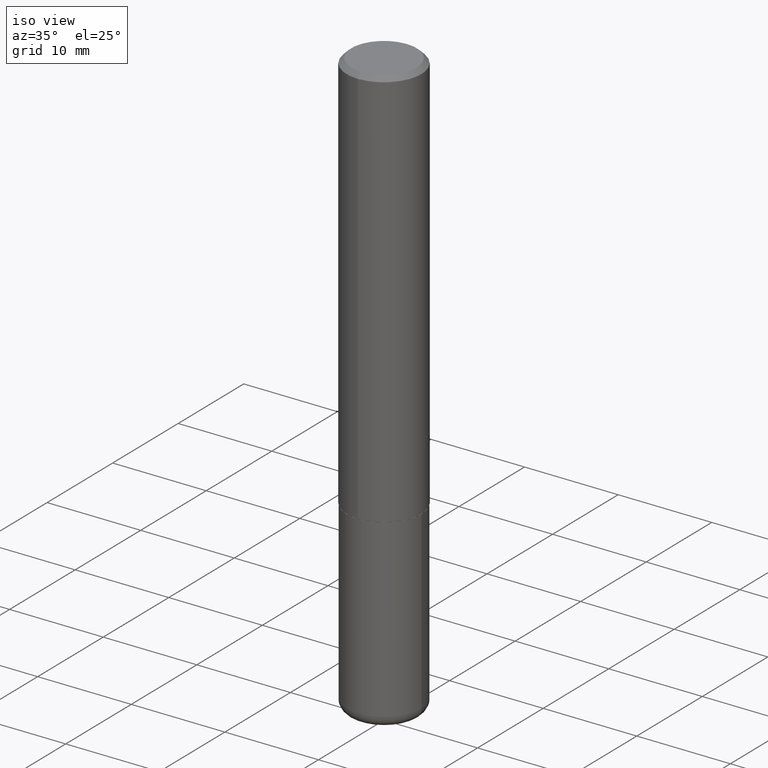
[diagram: clean part render]
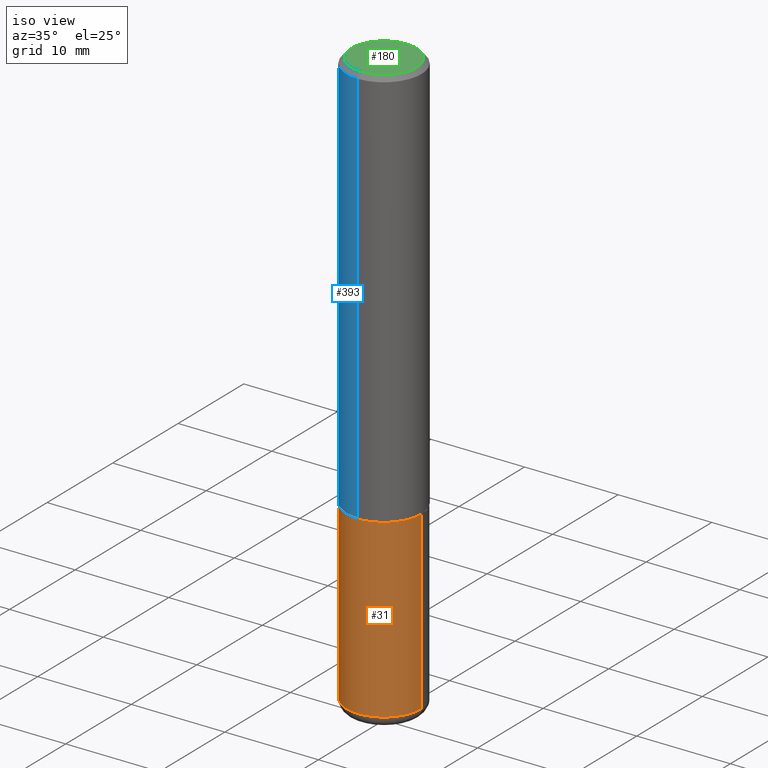
[diagram: same view with three faces highlighted in distinct colors, each labeled with its STEP entity id]
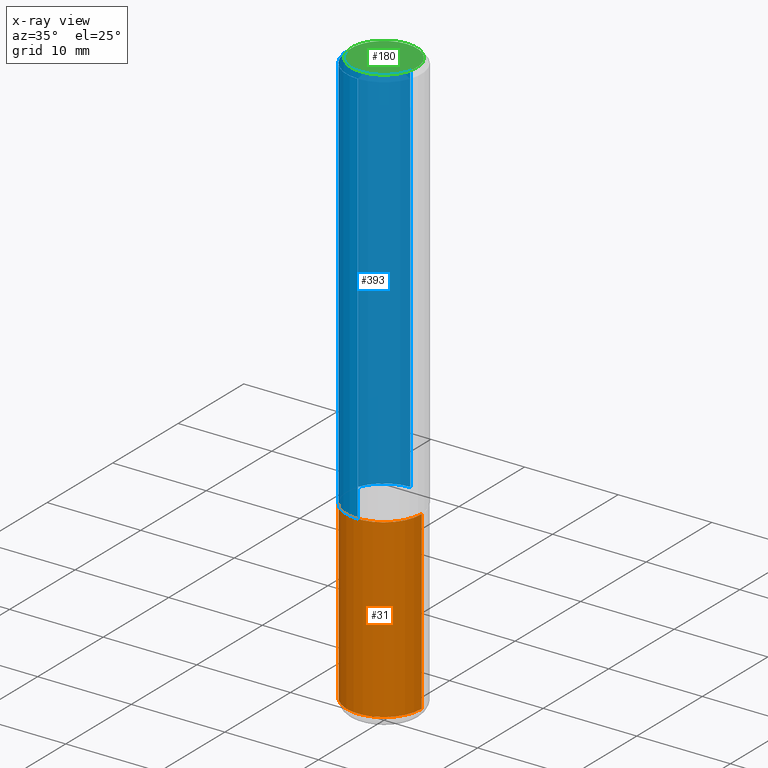
[diagram: x-ray of the same camera — body ghosted, the three highlighted faces saturated]
A machine part, iso view with three faces highlighted in distinct colors.
The next image is the same camera in x-ray (body ghosted, the three faces saturated) — at least one of them is partly hidden behind the body in this view.
Their STEP definitions:

[orange] entity #31 — the highlighted cylindrical surface (partial cylindrical patch) has radius 4.0005 mm, axis along (-0, 0, 1).
#1 = EDGE_LOOP ( 'NONE', ( #234, #64, #136, #199 ) ) ;
#4 = EDGE_CURVE ( 'NONE', #377, #75, #38, .T. ) ;
#31 = ADVANCED_FACE ( 'NONE', ( #309 ), #91, .T. ) ;
#38 = CIRCLE ( 'NONE', #107, 0.1575000000000000011 ) ;
#49 = CARTESIAN_POINT ( 'NONE',  ( 0.1575000000000000011, -7.010545380263150133E-15, -1.692900000000000293 ) ) ;
#63 = EDGE_CURVE ( 'NONE', #305, #75, #246, .T. ) ;
#64 = ORIENTED_EDGE ( 'NONE', *, *, #409, .T. ) ;
#74 = EDGE_CURVE ( 'NONE', #155, #377, #213, .T. ) ;
#75 = VERTEX_POINT ( 'NONE', #49 ) ;
#88 = CARTESIAN_POINT ( 'NONE',  ( -0.1574999999999999456, 1.119104808822157406E-15, -7.747322767151474182E-30 ) ) ;
#90 = DIRECTION ( 'NONE',  ( 1.000000000000000000, -6.982962677686267499E-15, 4.876176775795935793E-29 ) ) ;
#91 = CYLINDRICAL_SURFACE ( 'NONE', #405, 0.1574999999999999456 ) ;
#107 = AXIS2_PLACEMENT_3D ( 'NONE', #202, #139, #417 ) ;
#128 = CARTESIAN_POINT ( 'NONE',  ( 0.1574999999999998346, -9.594939867274844201E-15, -2.433100000000000041 ) ) ;
#133 = DIRECTION ( 'NONE',  ( 1.000000000000000000, -6.982962677686270655E-15, 0.000000000000000000 ) ) ;
#136 = ORIENTED_EDGE ( 'NONE', *, *, #63, .T. ) ;
#139 = DIRECTION ( 'NONE',  ( -2.445468806185136597E-29, 3.491481338843145583E-15, 1.000000000000000000 ) ) ;
#140 = VECTOR ( 'NONE', #370, 39.37007874015748143 ) ;
#146 = CARTESIAN_POINT ( 'NONE',  ( 0.1574999999999999456, -1.099816621735586691E-15, 7.679978421878596632E-30 ) ) ;
#151 = AXIS2_PLACEMENT_3D ( 'NONE', #198, #322, #133 ) ;
#155 = VERTEX_POINT ( 'NONE', #221 ) ;
#190 = DIRECTION ( 'NONE',  ( -2.445468806185136597E-29, 3.491481338843145583E-15, 1.000000000000000000 ) ) ;
#198 = CARTESIAN_POINT ( 'NONE',  ( 5.950070152329056268E-29, -8.495123245539257510E-15, -2.433100000000000041 ) ) ;
#199 = ORIENTED_EDGE ( 'NONE', *, *, #4, .F. ) ;
#202 = CARTESIAN_POINT ( 'NONE',  ( 4.139934141990818918E-29, -5.910728758527562653E-15, -1.692900000000000293 ) ) ;
#213 = LINE ( 'NONE', #88, #243 ) ;
#221 = CARTESIAN_POINT ( 'NONE',  ( -0.1574999999999998346, -7.376018436717101484E-15, -2.433100000000000041 ) ) ;
#234 = ORIENTED_EDGE ( 'NONE', *, *, #74, .F. ) ;
#243 = VECTOR ( 'NONE', #274, 39.37007874015748143 ) ;
#246 = LINE ( 'NONE', #146, #140 ) ;
#274 = DIRECTION ( 'NONE',  ( -2.445468806185136877E-29, 3.491481338843145188E-15, 1.000000000000000000 ) ) ;
#305 = VERTEX_POINT ( 'NONE', #128 ) ;
#309 = FACE_OUTER_BOUND ( 'NONE', #1, .T. ) ;
#322 = DIRECTION ( 'NONE',  ( -2.445468806185136597E-29, 3.491481338843145583E-15, 1.000000000000000000 ) ) ;
#367 = CARTESIAN_POINT ( 'NONE',  ( 0.000000000000000000, 0.000000000000000000, 0.000000000000000000 ) ) ;
#370 = DIRECTION ( 'NONE',  ( -2.445468806185136877E-29, 3.491481338843145188E-15, 1.000000000000000000 ) ) ;
#377 = VERTEX_POINT ( 'NONE', #418 ) ;
#392 = CIRCLE ( 'NONE', #151, 0.1574999999999999456 ) ;
#405 = AXIS2_PLACEMENT_3D ( 'NONE', #367, #190, #90 ) ;
#409 = EDGE_CURVE ( 'NONE', #155, #305, #392, .T. ) ;
#417 = DIRECTION ( 'NONE',  ( 1.000000000000000000, -6.982962677686268288E-15, 0.000000000000000000 ) ) ;
#418 = CARTESIAN_POINT ( 'NONE',  ( -0.1575000000000000011, -6.083821193211252478E-15, -1.692900000000000293 ) ) ;

[blue] entity #393 — the highlighted cylindrical surface (partial cylindrical patch) has radius 4.0005 mm, axis along (-0, 0, 1).
#7 = CARTESIAN_POINT ( 'NONE',  ( -1.099816621735587677E-15, -0.1575000000000001399, 5.491498622301760285E-16 ) ) ;
#12 = DIRECTION ( 'NONE',  ( -6.982962677686265922E-15, -1.000000000000000000, 3.469013325287948560E-15 ) ) ;
#22 = VECTOR ( 'NONE', #186, 39.37007874015748143 ) ;
#25 = CARTESIAN_POINT ( 'NONE',  ( -1.099816621735546854E-15, -0.1575000000000061351, -1.691899999999999737 ) ) ;
#27 = ORIENTED_EDGE ( 'NONE', *, *, #45, .T. ) ;
#45 = EDGE_CURVE ( 'NONE', #171, #51, #210, .T. ) ;
#51 = VERTEX_POINT ( 'NONE', #218 ) ;
#56 = EDGE_CURVE ( 'NONE', #101, #171, #76, .T. ) ;
#60 = AXIS2_PLACEMENT_3D ( 'NONE', #343, #316, #400 ) ;
#76 = CIRCLE ( 'NONE', #320, 0.1575000000000002232 ) ;
#94 = EDGE_CURVE ( 'NONE', #101, #352, #282, .T. ) ;
#96 = ORIENTED_EDGE ( 'NONE', *, *, #94, .F. ) ;
#101 = VERTEX_POINT ( 'NONE', #216 ) ;
#110 = CARTESIAN_POINT ( 'NONE',  ( 0.000000000000000000, 0.000000000000000000, 0.000000000000000000 ) ) ;
#121 = CIRCLE ( 'NONE', #60, 0.1575000000000000289 ) ;
#122 = CARTESIAN_POINT ( 'NONE',  ( 4.143177988822704896E-29, -5.899089853379264171E-15, -1.691900000000000404 ) ) ;
#125 = CARTESIAN_POINT ( 'NONE',  ( 1.119104808822158392E-15, 0.1575000000000001399, -5.491498622301760285E-16 ) ) ;
#130 = CARTESIAN_POINT ( 'NONE',  ( 1.099816621735587480E-15, 0.1574999999999999456, -0.02000000000000061798 ) ) ;
#138 = FACE_OUTER_BOUND ( 'NONE', #388, .T. ) ;
#141 = VECTOR ( 'NONE', #247, 39.37007874015748143 ) ;
#171 = VERTEX_POINT ( 'NONE', #25 ) ;
#184 = DIRECTION ( 'NONE',  ( -2.448831484616528367E-29, 3.486665791937622522E-15, 1.000000000000000000 ) ) ;
#186 = DIRECTION ( 'NONE',  ( -2.448831484616528086E-29, 3.486665791937622128E-15, 1.000000000000000000 ) ) ;
#194 = DIRECTION ( 'NONE',  ( -6.982962677686265133E-15, -1.000000000000000000, 3.486665791937622522E-15 ) ) ;
#210 = LINE ( 'NONE', #7, #22 ) ;
#216 = CARTESIAN_POINT ( 'NONE',  ( 1.119104808822179494E-15, 0.1574999999999943112, -1.691900000000000848 ) ) ;
#218 = CARTESIAN_POINT ( 'NONE',  ( -1.080528434649015779E-15, -0.1575000000000000844, -0.01999999999999951816 ) ) ;
#230 = CYLINDRICAL_SURFACE ( 'NONE', #334, 0.1575000000000001399 ) ;
#247 = DIRECTION ( 'NONE',  ( -2.448831484616528086E-29, 3.486665791937622128E-15, 1.000000000000000000 ) ) ;
#282 = LINE ( 'NONE', #125, #141 ) ;
#314 = EDGE_CURVE ( 'NONE', #352, #51, #121, .T. ) ;
#316 = DIRECTION ( 'NONE',  ( -2.448831484616528367E-29, 3.486665791937622522E-15, 1.000000000000000000 ) ) ;
#320 = AXIS2_PLACEMENT_3D ( 'NONE', #122, #184, #12 ) ;
#334 = AXIS2_PLACEMENT_3D ( 'NONE', #110, #358, #194 ) ;
#343 = CARTESIAN_POINT ( 'NONE',  ( 4.897662969233072813E-31, -6.973331583875268020E-17, -0.02000000000000006981 ) ) ;
#350 = ORIENTED_EDGE ( 'NONE', *, *, #314, .F. ) ;
#352 = VERTEX_POINT ( 'NONE', #130 ) ;
#358 = DIRECTION ( 'NONE',  ( -2.448831484616528367E-29, 3.486665791937622522E-15, 1.000000000000000000 ) ) ;
#382 = ORIENTED_EDGE ( 'NONE', *, *, #56, .T. ) ;
#388 = EDGE_LOOP ( 'NONE', ( #96, #382, #27, #350 ) ) ;
#393 = ADVANCED_FACE ( 'NONE', ( #138 ), #230, .T. ) ;
#400 = DIRECTION ( 'NONE',  ( -6.982962677686264344E-15, -1.000000000000000000, 3.496114991891764787E-15 ) ) ;

[green] entity #180 — the highlighted planar face has unit normal (0, -0, -1).
#13 = EDGE_CURVE ( 'NONE', #361, #301, #168, .T. ) ;
#23 = AXIS2_PLACEMENT_3D ( 'NONE', #261, #376, #157 ) ;
#28 = DIRECTION ( 'NONE',  ( 2.448831484616528086E-29, -3.486665791937622128E-15, -1.000000000000000000 ) ) ;
#37 = EDGE_LOOP ( 'NONE', ( #414, #324 ) ) ;
#42 = DIRECTION ( 'NONE',  ( -6.982962677686266711E-15, -1.000000000000000000, 3.486665791937622128E-15 ) ) ;
#68 = CIRCLE ( 'NONE', #23, 0.1375000000000003442 ) ;
#77 = AXIS2_PLACEMENT_3D ( 'NONE', #325, #28, #163 ) ;
#98 = PLANE ( 'NONE',  #77 ) ;
#129 = FACE_OUTER_BOUND ( 'NONE', #37, .T. ) ;
#137 = EDGE_CURVE ( 'NONE', #301, #361, #68, .T. ) ;
#157 = DIRECTION ( 'NONE',  ( -6.982962677686266711E-15, -1.000000000000000000, 3.486665791937622128E-15 ) ) ;
#160 = CARTESIAN_POINT ( 'NONE',  ( 7.437750759005219545E-45, -1.058992883066534334E-30, -3.037265244966386949E-16 ) ) ;
#163 = DIRECTION ( 'NONE',  ( 6.982962677686265922E-15, 1.000000000000000000, -3.486665791937622128E-15 ) ) ;
#168 = CIRCLE ( 'NONE', #306, 0.1375000000000003442 ) ;
#172 = CARTESIAN_POINT ( 'NONE',  ( 1.029986994958725760E-15, 0.1375000000000003442, -7.831430708880630046E-16 ) ) ;
#180 = ADVANCED_FACE ( 'NONE', ( #129 ), #98, .F. ) ;
#261 = CARTESIAN_POINT ( 'NONE',  ( 7.437750759005219545E-45, -1.058992883066534334E-30, -3.037265244966386949E-16 ) ) ;
#285 = CARTESIAN_POINT ( 'NONE',  ( -1.011923454671301828E-15, -0.1375000000000003442, 1.756900218947856148E-16 ) ) ;
#291 = DIRECTION ( 'NONE',  ( -2.448831484616528367E-29, 3.486665791937622522E-15, 1.000000000000000000 ) ) ;
#301 = VERTEX_POINT ( 'NONE', #285 ) ;
#306 = AXIS2_PLACEMENT_3D ( 'NONE', #160, #291, #42 ) ;
#324 = ORIENTED_EDGE ( 'NONE', *, *, #137, .T. ) ;
#325 = CARTESIAN_POINT ( 'NONE',  ( 9.601573681818640393E-16, 0.1375000000000003442, -6.312798086397435832E-16 ) ) ;
#361 = VERTEX_POINT ( 'NONE', #172 ) ;
#376 = DIRECTION ( 'NONE',  ( -2.448831484616528367E-29, 3.486665791937622522E-15, 1.000000000000000000 ) ) ;
#414 = ORIENTED_EDGE ( 'NONE', *, *, #13, .T. ) ;